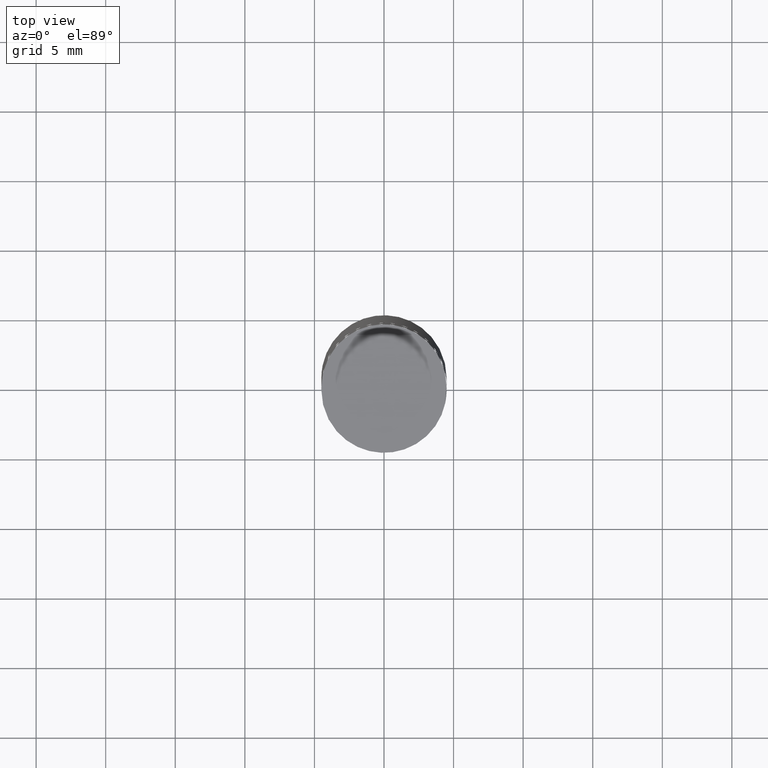
[diagram: clean part render]
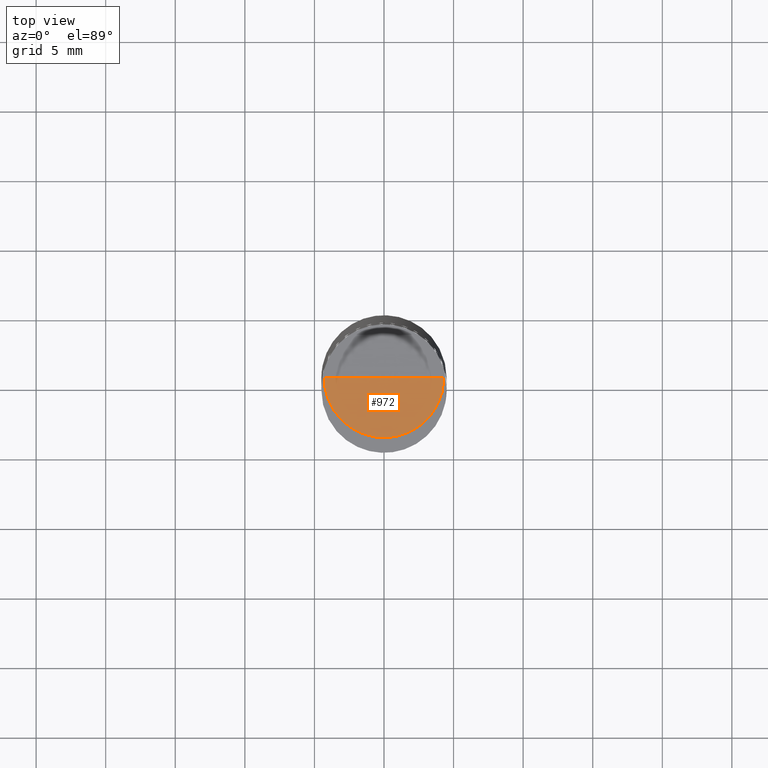
[diagram: same view with one face highlighted and labeled with its STEP entity id]
A machine part, top view. The second image highlights one B-rep face of the part: STEP entity #972.
In plain terms, the highlighted face is a freeform B-spline surface patch.
Its self-contained STEP definition (entity closure, byte-faithful):
#660=CARTESIAN_POINT('',(4.3,0.0,31.0));
#664=CARTESIAN_POINT('',(-4.3,0.0,31.0));
#665=CARTESIAN_POINT('',(0.0,0.0,31.0));
#672=CARTESIAN_POINT('',(-4.3,-4.3,31.0));
#673=CARTESIAN_POINT('',(0.0,-4.3,31.0));
#674=CARTESIAN_POINT('',(4.3,-4.3,31.0));
#957=(
BOUNDED_SURFACE()
B_SPLINE_SURFACE(1,2,(
(#664,#672,#673,#674,#660),
(#665,#665,#665,#665,#665)
), .UNSPECIFIED.,.F.,.F.,.F.)
B_SPLINE_SURFACE_WITH_KNOTS((2,2),(3,2,3),(
0.0,1.0),(
0.0,0.5,1.0), .UNSPECIFIED.)
GEOMETRIC_REPRESENTATION_ITEM()
RATIONAL_B_SPLINE_SURFACE(((1.0,0.707106781187,1.0,0.707106781187,1.0),
(1.0,0.707106781187,1.0,0.707106781187,1.0)
))
REPRESENTATION_ITEM('')
SURFACE()
);
#958=(
BOUNDED_CURVE()
B_SPLINE_CURVE(2,(#660,#674,#673,#672,#664),.UNSPECIFIED.,.F.,.F.)
B_SPLINE_CURVE_WITH_KNOTS((3,2,3),
(0.0,0.5,1.0),.UNSPECIFIED.)
CURVE()
GEOMETRIC_REPRESENTATION_ITEM()
RATIONAL_B_SPLINE_CURVE((1.0,0.707106781187,1.0,0.707106781187,1.0))
REPRESENTATION_ITEM('')
);
#959=(
BOUNDED_CURVE()
B_SPLINE_CURVE(1,(#664,#665),.UNSPECIFIED.,.F.,.F.)
B_SPLINE_CURVE_WITH_KNOTS((2,2),
(0.0,1.0),.UNSPECIFIED.)
CURVE()
GEOMETRIC_REPRESENTATION_ITEM()
RATIONAL_B_SPLINE_CURVE((1.0,1.0))
REPRESENTATION_ITEM('')
);
#960=(
BOUNDED_CURVE()
B_SPLINE_CURVE(1,(#665,#660),.UNSPECIFIED.,.F.,.F.)
B_SPLINE_CURVE_WITH_KNOTS((2,2),
(0.0,1.0),.UNSPECIFIED.)
CURVE()
GEOMETRIC_REPRESENTATION_ITEM()
RATIONAL_B_SPLINE_CURVE((1.0,1.0))
REPRESENTATION_ITEM('')
);
#961=VERTEX_POINT('',#660);
#962=VERTEX_POINT('',#664);
#963=VERTEX_POINT('',#665);
#964=EDGE_CURVE('',#961,#962,#958,.T.);
#965=EDGE_CURVE('',#962,#963,#959,.T.);
#966=EDGE_CURVE('',#963,#961,#960,.T.);
#967=ORIENTED_EDGE('',*,*,#964,.T.);
#968=ORIENTED_EDGE('',*,*,#965,.T.);
#969=ORIENTED_EDGE('',*,*,#966,.T.);
#970=EDGE_LOOP('',(#967,#968,#969));
#971=FACE_OUTER_BOUND('',#970,.T.);
#972=ADVANCED_FACE('',(#971),#957,.T.);